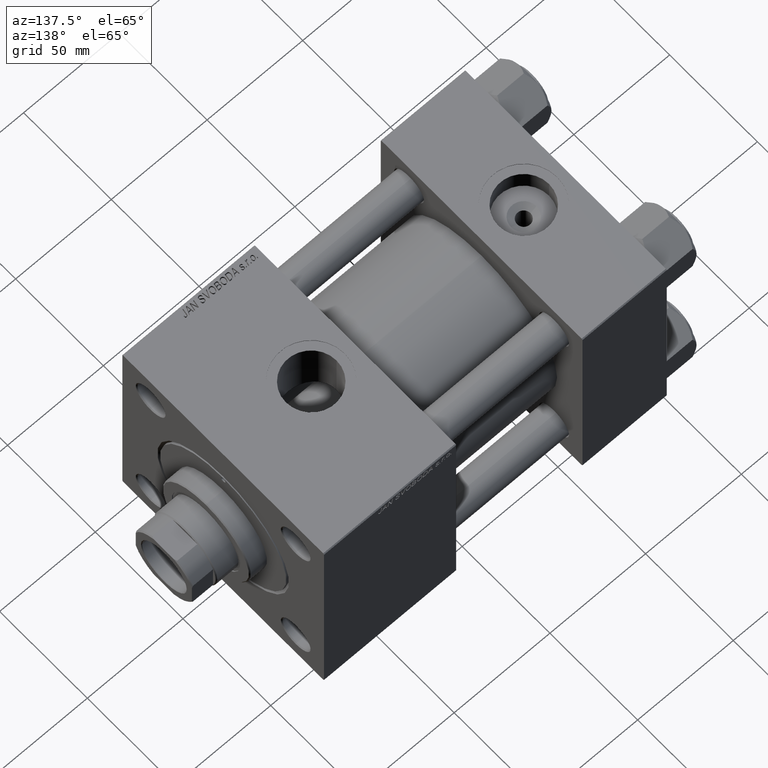
[diagram: clean part render]
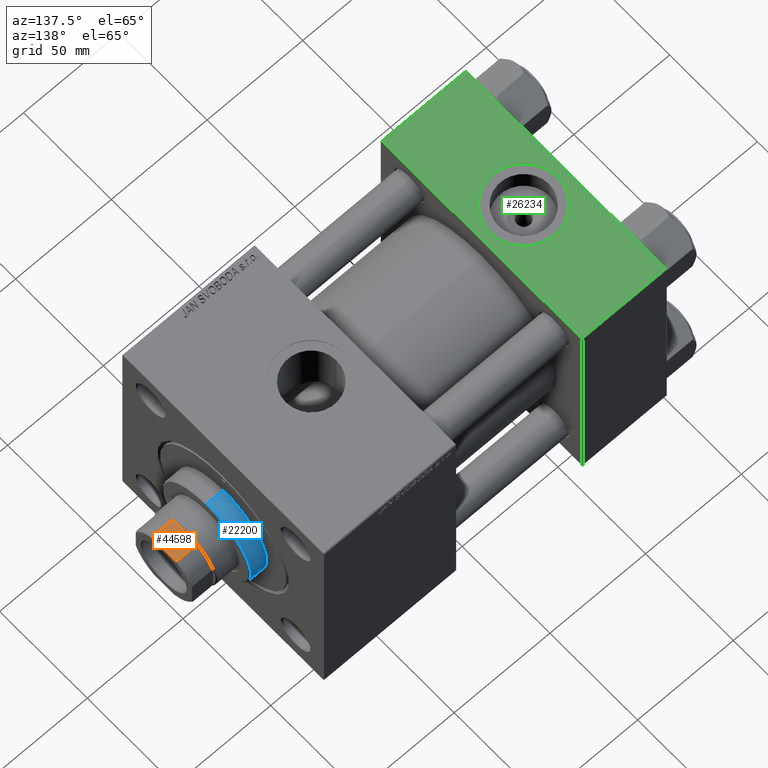
[diagram: same view with three faces highlighted in distinct colors, each labeled with its STEP entity id]
A machine part, auxiliary view with three faces highlighted in distinct colors.
Their STEP definitions:

[orange] entity #44598 — the highlighted planar face has unit normal (0, 0, -1).
#1246 = EDGE_CURVE ( 'NONE', #23380, #50665, #36297, .T. ) ;
#1595 = AXIS2_PLACEMENT_3D ( 'NONE', #10227, #33861, #25891 ) ;
#3542 = EDGE_CURVE ( 'NONE', #19595, #50665, #7212, .T. ) ;
#4191 = CARTESIAN_POINT ( 'NONE',  ( 6.197659614356103575, -15.99999999999999645, 165.8468915343184165 ) ) ;
#4941 = VECTOR ( 'NONE', #40163, 1000.000000000000000 ) ;
#5324 = EDGE_CURVE ( 'NONE', #40419, #10357, #24878, .T. ) ;
#5754 = CARTESIAN_POINT ( 'NONE',  ( -6.197659614356100910, -15.99999999999999645, 165.8468915343184165 ) ) ;
#6252 = CARTESIAN_POINT ( 'NONE',  ( 7.088723439378915359, -16.00000000000000000, 165.5000000000000000 ) ) ;
#6347 = B_SPLINE_CURVE_WITH_KNOTS ( 'NONE', 3,
 ( #25286, #5754, #44022, #17595 ),
 .UNSPECIFIED., .F., .F.,
 ( 4, 4 ),
 ( 0.000000000000000000, 0.001434143729551005031 ),
 .UNSPECIFIED. ) ;
#7212 = B_SPLINE_CURVE_WITH_KNOTS ( 'NONE', 3,
 ( #47083, #49917, #4191, #11157 ),
 .UNSPECIFIED., .F., .F.,
 ( 4, 4 ),
 ( 0.000000000000000000, 0.001434143729551004597 ),
 .UNSPECIFIED. ) ;
#8002 = EDGE_CURVE ( 'NONE', #23380, #10357, #6347, .T. ) ;
#10227 = CARTESIAN_POINT ( 'NONE',  ( -16.00000000000000000, -15.99999999999999645, 166.0000000000000000 ) ) ;
#10357 = VERTEX_POINT ( 'NONE', #33866 ) ;
#11157 = CARTESIAN_POINT ( 'NONE',  ( 5.744562646538093453, -15.99999999999999645, 166.0000000000000000 ) ) ;
#14335 = DIRECTION ( 'NONE',  ( -0.000000000000000000, -0.000000000000000000, 1.000000000000000000 ) ) ;
#14486 = DIRECTION ( 'NONE',  ( 1.000000000000000000, 0.000000000000000000, 0.000000000000000000 ) ) ;
#17033 = EDGE_LOOP ( 'NONE', ( #38078, #29588, #25836, #46195, #21647, #32945 ) ) ;
#17595 = CARTESIAN_POINT ( 'NONE',  ( -7.088723439378915359, -16.00000000000000000, 165.5000000000000000 ) ) ;
#19595 = VERTEX_POINT ( 'NONE', #6252 ) ;
#20237 = VECTOR ( 'NONE', #14486, 1000.000000000000000 ) ;
#20263 = CARTESIAN_POINT ( 'NONE',  ( -7.088723439378915359, -16.00000000000000000, 154.9999999999999432 ) ) ;
#20429 = LINE ( 'NONE', #31742, #36977 ) ;
#21291 = PLANE ( 'NONE',  #1595 ) ;
#21647 = ORIENTED_EDGE ( 'NONE', *, *, #5324, .F. ) ;
#21658 = CARTESIAN_POINT ( 'NONE',  ( -5.744562646538093453, -15.99999999999999645, 166.0000000000000000 ) ) ;
#21788 = CARTESIAN_POINT ( 'NONE',  ( -7.088723439378915359, -16.00000000000000000, -0.001000000000001000089 ) ) ;
#22447 = LINE ( 'NONE', #45773, #20237 ) ;
#23380 = VERTEX_POINT ( 'NONE', #21658 ) ;
#24530 = DIRECTION ( 'NONE',  ( -0.000000000000000000, -0.000000000000000000, 1.000000000000000000 ) ) ;
#24657 = VERTEX_POINT ( 'NONE', #40373 ) ;
#24878 = LINE ( 'NONE', #21788, #31408 ) ;
#25286 = CARTESIAN_POINT ( 'NONE',  ( -5.744562646538093453, -15.99999999999999645, 166.0000000000000000 ) ) ;
#25836 = ORIENTED_EDGE ( 'NONE', *, *, #1246, .F. ) ;
#25891 = DIRECTION ( 'NONE',  ( 0.000000000000000000, -0.000000000000000000, 1.000000000000000000 ) ) ;
#28098 = CARTESIAN_POINT ( 'NONE',  ( -16.00000000000000000, -15.99999999999999645, 166.0000000000000000 ) ) ;
#29588 = ORIENTED_EDGE ( 'NONE', *, *, #3542, .T. ) ;
#31408 = VECTOR ( 'NONE', #14335, 1000.000000000000000 ) ;
#31742 = CARTESIAN_POINT ( 'NONE',  ( 7.088723439378915359, -16.00000000000000000, -0.001000000000001000089 ) ) ;
#32945 = ORIENTED_EDGE ( 'NONE', *, *, #37000, .T. ) ;
#33861 = DIRECTION ( 'NONE',  ( 0.000000000000000000, 1.000000000000000000, 0.000000000000000000 ) ) ;
#33866 = CARTESIAN_POINT ( 'NONE',  ( -7.088723439378915359, -16.00000000000000000, 165.5000000000000000 ) ) ;
#36297 = LINE ( 'NONE', #28098, #4941 ) ;
#36977 = VECTOR ( 'NONE', #24530, 1000.000000000000000 ) ;
#37000 = EDGE_CURVE ( 'NONE', #40419, #24657, #22447, .T. ) ;
#37442 = FACE_OUTER_BOUND ( 'NONE', #17033, .T. ) ;
#38078 = ORIENTED_EDGE ( 'NONE', *, *, #50038, .T. ) ;
#40163 = DIRECTION ( 'NONE',  ( 1.000000000000000000, 0.000000000000000000, 0.000000000000000000 ) ) ;
#40373 = CARTESIAN_POINT ( 'NONE',  ( 7.088723439378915359, -16.00000000000000000, 154.9999999999999716 ) ) ;
#40419 = VERTEX_POINT ( 'NONE', #20263 ) ;
#44022 = CARTESIAN_POINT ( 'NONE',  ( -6.645462757301158874, -15.99999999999999645, 165.6795515649600645 ) ) ;
#44598 = ADVANCED_FACE ( 'NONE', ( #37442 ), #21291, .F. ) ;
#44750 = CARTESIAN_POINT ( 'NONE',  ( 5.744562646538093453, -15.99999999999999645, 166.0000000000000000 ) ) ;
#45773 = CARTESIAN_POINT ( 'NONE',  ( -16.00000000000000000, -15.99999999999999645, 155.0000000000000000 ) ) ;
#46195 = ORIENTED_EDGE ( 'NONE', *, *, #8002, .T. ) ;
#47083 = CARTESIAN_POINT ( 'NONE',  ( 7.088723439378915359, -16.00000000000000000, 165.5000000000000000 ) ) ;
#49917 = CARTESIAN_POINT ( 'NONE',  ( 6.645462757301140222, -16.00000000000000000, 165.6795515649600077 ) ) ;
#50038 = EDGE_CURVE ( 'NONE', #24657, #19595, #20429, .T. ) ;
#50665 = VERTEX_POINT ( 'NONE', #44750 ) ;

[blue] entity #22200 — the highlighted cylindrical surface (partial cylindrical patch) has radius 25 mm, axis along (-1, -0, -0).
#900 = CIRCLE ( 'NONE', #26363, 25.00000000000000000 ) ;
#2713 = EDGE_CURVE ( 'NONE', #11607, #45766, #900, .T. ) ;
#5545 = VECTOR ( 'NONE', #29371, 1000.000000000000000 ) ;
#6070 = VERTEX_POINT ( 'NONE', #24390 ) ;
#6789 = EDGE_CURVE ( 'NONE', #6070, #45766, #32300, .T. ) ;
#7319 = CARTESIAN_POINT ( 'NONE',  ( 25.00000000000000000, 3.061616997868383043E-15, 28.69999999999999929 ) ) ;
#10122 = DIRECTION ( 'NONE',  ( -0.000000000000000000, -0.000000000000000000, -1.000000000000000000 ) ) ;
#11607 = VERTEX_POINT ( 'NONE', #7319 ) ;
#11891 = ORIENTED_EDGE ( 'NONE', *, *, #2713, .T. ) ;
#13970 = CARTESIAN_POINT ( 'NONE',  ( 25.00000000000000000, 3.061616997868383043E-15, 37.69999999999999574 ) ) ;
#14507 = VERTEX_POINT ( 'NONE', #38675 ) ;
#14888 = DIRECTION ( 'NONE',  ( 0.000000000000000000, 0.000000000000000000, -1.000000000000000000 ) ) ;
#16389 = CIRCLE ( 'NONE', #23775, 25.00000000000000000 ) ;
#17148 = CARTESIAN_POINT ( 'NONE',  ( -25.00000000000000000, 0.000000000000000000, 37.69999999999999574 ) ) ;
#17341 = CYLINDRICAL_SURFACE ( 'NONE', #35090, 25.00000000000000000 ) ;
#22200 = ADVANCED_FACE ( 'NONE', ( #29377 ), #17341, .T. ) ;
#23775 = AXIS2_PLACEMENT_3D ( 'NONE', #26181, #14888, #25670 ) ;
#24390 = CARTESIAN_POINT ( 'NONE',  ( -25.00000000000000000, 0.000000000000000000, 37.19999999999999574 ) ) ;
#25670 = DIRECTION ( 'NONE',  ( 1.000000000000000000, 0.000000000000000000, 0.000000000000000000 ) ) ;
#26181 = CARTESIAN_POINT ( 'NONE',  ( 0.000000000000000000, 0.000000000000000000, 37.19999999999999574 ) ) ;
#26363 = AXIS2_PLACEMENT_3D ( 'NONE', #30845, #27920, #46476 ) ;
#27920 = DIRECTION ( 'NONE',  ( 0.000000000000000000, 0.000000000000000000, 1.000000000000000000 ) ) ;
#29371 = DIRECTION ( 'NONE',  ( -0.000000000000000000, -0.000000000000000000, -1.000000000000000000 ) ) ;
#29377 = FACE_OUTER_BOUND ( 'NONE', #48139, .T. ) ;
#30372 = EDGE_CURVE ( 'NONE', #6070, #14507, #16389, .T. ) ;
#30845 = CARTESIAN_POINT ( 'NONE',  ( 0.000000000000000000, 0.000000000000000000, 28.69999999999999929 ) ) ;
#31424 = ORIENTED_EDGE ( 'NONE', *, *, #6789, .F. ) ;
#32300 = LINE ( 'NONE', #17148, #49452 ) ;
#32736 = LINE ( 'NONE', #13970, #5545 ) ;
#32820 = ORIENTED_EDGE ( 'NONE', *, *, #38932, .T. ) ;
#35090 = AXIS2_PLACEMENT_3D ( 'NONE', #45034, #10122, #45282 ) ;
#38675 = CARTESIAN_POINT ( 'NONE',  ( 25.00000000000000000, 3.061616997868383043E-15, 37.19999999999999574 ) ) ;
#38932 = EDGE_CURVE ( 'NONE', #14507, #11607, #32736, .T. ) ;
#44367 = CARTESIAN_POINT ( 'NONE',  ( -25.00000000000000000, 0.000000000000000000, 28.69999999999999929 ) ) ;
#45034 = CARTESIAN_POINT ( 'NONE',  ( 0.000000000000000000, 0.000000000000000000, 37.69999999999999574 ) ) ;
#45282 = DIRECTION ( 'NONE',  ( -1.000000000000000000, 0.000000000000000000, 0.000000000000000000 ) ) ;
#45766 = VERTEX_POINT ( 'NONE', #44367 ) ;
#46476 = DIRECTION ( 'NONE',  ( 1.000000000000000000, 0.000000000000000000, 0.000000000000000000 ) ) ;
#47936 = DIRECTION ( 'NONE',  ( -0.000000000000000000, -0.000000000000000000, -1.000000000000000000 ) ) ;
#48139 = EDGE_LOOP ( 'NONE', ( #48807, #32820, #11891, #31424 ) ) ;
#48807 = ORIENTED_EDGE ( 'NONE', *, *, #30372, .T. ) ;
#49452 = VECTOR ( 'NONE', #47936, 1000.000000000000000 ) ;

[green] entity #26234 — the highlighted planar face has unit normal (0, 0, -1).
#1001 = CARTESIAN_POINT ( 'NONE',  ( 4.499999999999997335, -6.530485481376167224E-15, 57.50000000000000000 ) ) ;
#1003 = EDGE_LOOP ( 'NONE', ( #27517, #7414 ) ) ;
#1195 = DIRECTION ( 'NONE',  ( 0.000000000000000000, 1.206764157201257045E-16, -1.000000000000000000 ) ) ;
#1518 = CARTESIAN_POINT ( 'NONE',  ( 22.00000000000000000, -8.673617379884035472E-15, 57.50000000000000000 ) ) ;
#3639 = ORIENTED_EDGE ( 'NONE', *, *, #20432, .T. ) ;
#5060 = FACE_OUTER_BOUND ( 'NONE', #36686, .T. ) ;
#6284 = VECTOR ( 'NONE', #28864, 1000.000000000000000 ) ;
#6514 = DIRECTION ( 'NONE',  ( 0.000000000000000000, 0.000000000000000000, 1.000000000000000000 ) ) ;
#7414 = ORIENTED_EDGE ( 'NONE', *, *, #40100, .F. ) ;
#9703 = CARTESIAN_POINT ( 'NONE',  ( 44.00000000000000000, 57.49999999999999289, 57.50000000000000711 ) ) ;
#9769 = DIRECTION ( 'NONE',  ( 1.000000000000000000, 0.000000000000000000, 0.000000000000000000 ) ) ;
#12488 = VERTEX_POINT ( 'NONE', #28166 ) ;
#13209 = CARTESIAN_POINT ( 'NONE',  ( 44.00000000000000000, -57.00000000000003553, 57.49999999999999289 ) ) ;
#13787 = CARTESIAN_POINT ( 'NONE',  ( 39.50000000000000000, -8.673617379884035472E-15, 57.50000000000000000 ) ) ;
#15208 = VERTEX_POINT ( 'NONE', #13787 ) ;
#15844 = EDGE_CURVE ( 'NONE', #17994, #38680, #48576, .T. ) ;
#17733 = DIRECTION ( 'NONE',  ( 0.000000000000000000, 0.000000000000000000, 1.000000000000000000 ) ) ;
#17994 = VERTEX_POINT ( 'NONE', #31663 ) ;
#19642 = EDGE_CURVE ( 'NONE', #15208, #20128, #26764, .T. ) ;
#20128 = VERTEX_POINT ( 'NONE', #1001 ) ;
#20432 = EDGE_CURVE ( 'NONE', #12488, #43846, #48365, .T. ) ;
#20454 = AXIS2_PLACEMENT_3D ( 'NONE', #9703, #1195, #28462 ) ;
#20773 = ORIENTED_EDGE ( 'NONE', *, *, #22933, .F. ) ;
#20954 = EDGE_CURVE ( 'NONE', #38680, #12488, #44323, .T. ) ;
#21996 = CARTESIAN_POINT ( 'NONE',  ( 0.000000000000000000, 57.00000000000000711, 57.50000000000000711 ) ) ;
#22933 = EDGE_CURVE ( 'NONE', #17994, #43846, #25919, .T. ) ;
#24611 = PLANE ( 'NONE',  #20454 ) ;
#25919 = LINE ( 'NONE', #33630, #35963 ) ;
#25978 = DIRECTION ( 'NONE',  ( -1.000000000000000000, 0.000000000000000000, 0.000000000000000000 ) ) ;
#26093 = AXIS2_PLACEMENT_3D ( 'NONE', #1518, #17733, #9769 ) ;
#26234 = ADVANCED_FACE ( 'NONE', ( #33328, #5060 ), #24611, .F. ) ;
#26764 = CIRCLE ( 'NONE', #33330, 17.50000000000000000 ) ;
#27517 = ORIENTED_EDGE ( 'NONE', *, *, #19642, .F. ) ;
#28166 = CARTESIAN_POINT ( 'NONE',  ( 0.000000000000000000, -57.00000000000003553, 57.49999999999999289 ) ) ;
#28462 = DIRECTION ( 'NONE',  ( 0.000000000000000000, 1.000000000000000000, 1.206764157201257045E-16 ) ) ;
#28864 = DIRECTION ( 'NONE',  ( 1.000000000000000000, 0.000000000000000000, 0.000000000000000000 ) ) ;
#31663 = CARTESIAN_POINT ( 'NONE',  ( 44.00000000000000000, 57.00000000000000711, 57.50000000000000711 ) ) ;
#33328 = FACE_BOUND ( 'NONE', #1003, .T. ) ;
#33330 = AXIS2_PLACEMENT_3D ( 'NONE', #41716, #6514, #37857 ) ;
#33630 = CARTESIAN_POINT ( 'NONE',  ( 44.00000000000000000, 57.49999999999999289, 57.50000000000000711 ) ) ;
#35644 = CARTESIAN_POINT ( 'NONE',  ( 0.000000000000000000, 57.49999999999999289, 57.50000000000000711 ) ) ;
#35963 = VECTOR ( 'NONE', #50031, 1000.000000000000000 ) ;
#36686 = EDGE_LOOP ( 'NONE', ( #49735, #3639, #20773, #47223 ) ) ;
#37857 = DIRECTION ( 'NONE',  ( 1.000000000000000000, 0.000000000000000000, 0.000000000000000000 ) ) ;
#38680 = VERTEX_POINT ( 'NONE', #21996 ) ;
#40100 = EDGE_CURVE ( 'NONE', #20128, #15208, #48213, .T. ) ;
#41716 = CARTESIAN_POINT ( 'NONE',  ( 22.00000000000000000, -8.673617379884035472E-15, 57.50000000000000000 ) ) ;
#43846 = VERTEX_POINT ( 'NONE', #49927 ) ;
#44323 = LINE ( 'NONE', #35644, #47358 ) ;
#45475 = CARTESIAN_POINT ( 'NONE',  ( 0.000000000000000000, 57.00000000000000711, 57.50000000000000711 ) ) ;
#47223 = ORIENTED_EDGE ( 'NONE', *, *, #15844, .T. ) ;
#47358 = VECTOR ( 'NONE', #48181, 1000.000000000000000 ) ;
#48181 = DIRECTION ( 'NONE',  ( 0.000000000000000000, -1.000000000000000000, -1.206764157201257045E-16 ) ) ;
#48213 = CIRCLE ( 'NONE', #26093, 17.50000000000000000 ) ;
#48365 = LINE ( 'NONE', #13209, #6284 ) ;
#48576 = LINE ( 'NONE', #45475, #48775 ) ;
#48775 = VECTOR ( 'NONE', #25978, 1000.000000000000000 ) ;
#49735 = ORIENTED_EDGE ( 'NONE', *, *, #20954, .T. ) ;
#49927 = CARTESIAN_POINT ( 'NONE',  ( 44.00000000000000000, -57.00000000000003553, 57.49999999999999289 ) ) ;
#50031 = DIRECTION ( 'NONE',  ( 0.000000000000000000, -1.000000000000000000, -1.206764157201257045E-16 ) ) ;